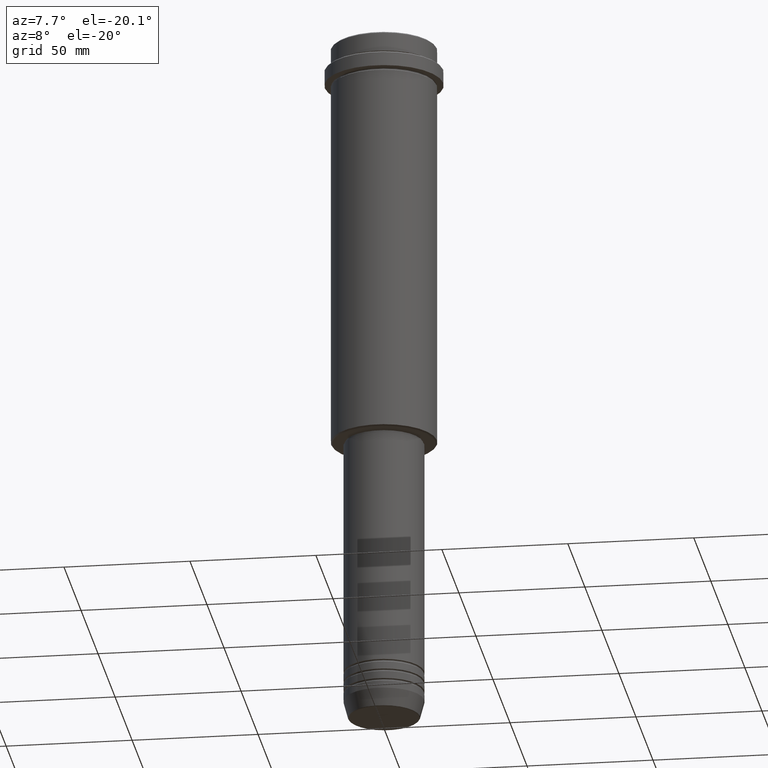
[diagram: clean part render]
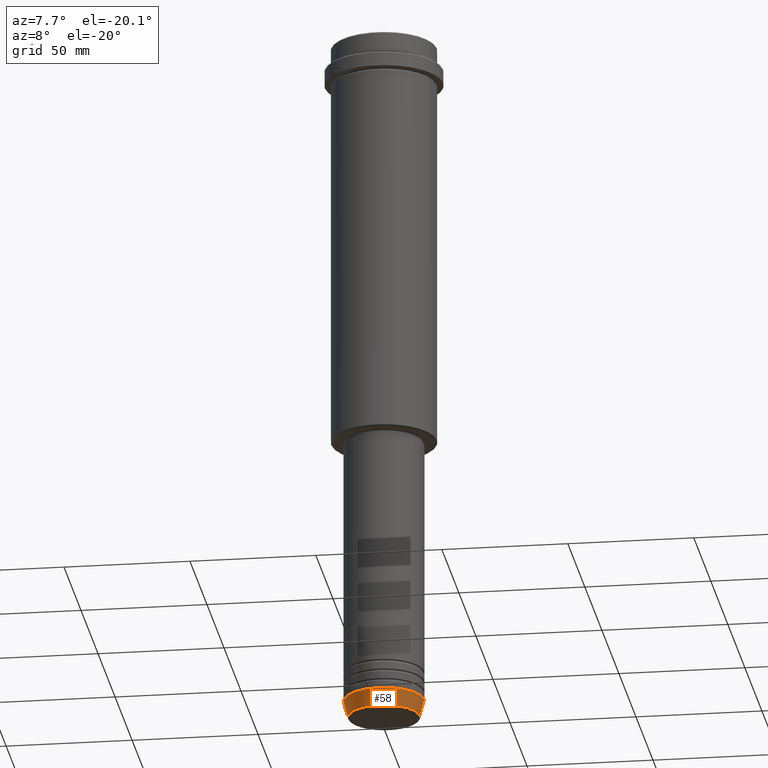
[diagram: same view with one face highlighted and labeled with its STEP entity id]
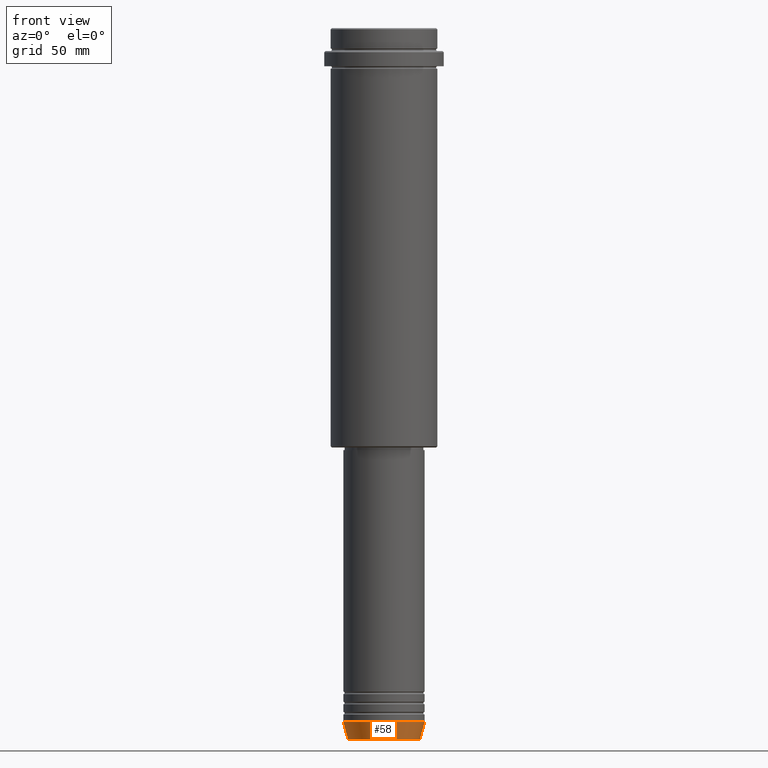
[diagram: same view with one face highlighted and labeled with its STEP entity id]
A machine part, auxiliary view. The second image highlights one B-rep face of the part: STEP entity #58.
A second angle (front view) of the same face is appended — the face is thin or edge-on in the first view.
In plain terms, the highlighted conical surface has half-angle 15 deg.
Its self-contained STEP definition (entity closure, byte-faithful):
#12 = DIRECTION ( 'NONE',  ( -0.000000000000000000, -0.000000000000000000, 1.000000000000000000 ) ) ;
#27 = VERTEX_POINT ( 'NONE', #1231 ) ;
#28 = CARTESIAN_POINT ( 'NONE',  ( 16.00000000000000000, 0.000000000000000000, -273.0000000000000000 ) ) ;
#58 = ADVANCED_FACE ( 'NONE', ( #509 ), #508, .T. ) ;
#102 = DIRECTION ( 'NONE',  ( -0.2588190451025213501, 3.169619151431772337E-17, 0.9659258262890680902 ) ) ;
#107 = AXIS2_PLACEMENT_3D ( 'NONE', #1090, #12, #1309 ) ;
#118 = CARTESIAN_POINT ( 'NONE',  ( -16.00000000000000000, 1.959434878635765131E-15, -273.0000000000000000 ) ) ;
#128 = AXIS2_PLACEMENT_3D ( 'NONE', #275, #1150, #701 ) ;
#177 = VERTEX_POINT ( 'NONE', #416 ) ;
#195 = DIRECTION ( 'NONE',  ( -0.000000000000000000, -0.000000000000000000, 1.000000000000000000 ) ) ;
#275 = CARTESIAN_POINT ( 'NONE',  ( 0.000000000000000000, 0.000000000000000000, -279.6294095225512706 ) ) ;
#284 = ORIENTED_EDGE ( 'NONE', *, *, #385, .T. ) ;
#358 = CIRCLE ( 'NONE', #107, 16.00000000000000000 ) ;
#385 = EDGE_CURVE ( 'NONE', #177, #27, #766, .T. ) ;
#416 = CARTESIAN_POINT ( 'NONE',  ( -14.22365507213718772, 1.850665122131323337E-15, -279.6294095225512706 ) ) ;
#449 = DIRECTION ( 'NONE',  ( 0.2588190451025213501, 0.000000000000000000, 0.9659258262890680902 ) ) ;
#455 = EDGE_CURVE ( 'NONE', #177, #1211, #1177, .T. ) ;
#483 = EDGE_CURVE ( 'NONE', #1211, #739, #358, .T. ) ;
#508 = CONICAL_SURFACE ( 'NONE', #1028, 16.00000000000000000, 0.2617993877991500740 ) ;
#509 = FACE_OUTER_BOUND ( 'NONE', #530, .T. ) ;
#530 = EDGE_LOOP ( 'NONE', ( #1178, #284, #823, #1324 ) ) ;
#639 = CARTESIAN_POINT ( 'NONE',  ( -16.00000000000000000, 1.959434878635765131E-15, -273.0000000000000000 ) ) ;
#701 = DIRECTION ( 'NONE',  ( 1.000000000000000000, 0.000000000000000000, 0.000000000000000000 ) ) ;
#739 = VERTEX_POINT ( 'NONE', #1077 ) ;
#766 = CIRCLE ( 'NONE', #128, 14.22365507213718772 ) ;
#800 = EDGE_CURVE ( 'NONE', #27, #739, #1017, .T. ) ;
#823 = ORIENTED_EDGE ( 'NONE', *, *, #800, .T. ) ;
#940 = CARTESIAN_POINT ( 'NONE',  ( 0.000000000000000000, 0.000000000000000000, -273.0000000000000000 ) ) ;
#1017 = LINE ( 'NONE', #28, #1051 ) ;
#1028 = AXIS2_PLACEMENT_3D ( 'NONE', #940, #195, #1392 ) ;
#1051 = VECTOR ( 'NONE', #449, 1000.000000000000000 ) ;
#1077 = CARTESIAN_POINT ( 'NONE',  ( 16.00000000000000000, 0.000000000000000000, -273.0000000000000000 ) ) ;
#1090 = CARTESIAN_POINT ( 'NONE',  ( 0.000000000000000000, 0.000000000000000000, -273.0000000000000000 ) ) ;
#1150 = DIRECTION ( 'NONE',  ( -0.000000000000000000, -0.000000000000000000, 1.000000000000000000 ) ) ;
#1177 = LINE ( 'NONE', #639, #1190 ) ;
#1178 = ORIENTED_EDGE ( 'NONE', *, *, #455, .F. ) ;
#1190 = VECTOR ( 'NONE', #102, 1000.000000000000000 ) ;
#1211 = VERTEX_POINT ( 'NONE', #118 ) ;
#1231 = CARTESIAN_POINT ( 'NONE',  ( 14.22365507213718772, 0.000000000000000000, -279.6294095225512706 ) ) ;
#1309 = DIRECTION ( 'NONE',  ( 1.000000000000000000, 0.000000000000000000, 0.000000000000000000 ) ) ;
#1324 = ORIENTED_EDGE ( 'NONE', *, *, #483, .F. ) ;
#1392 = DIRECTION ( 'NONE',  ( 1.000000000000000000, 0.000000000000000000, 0.000000000000000000 ) ) ;